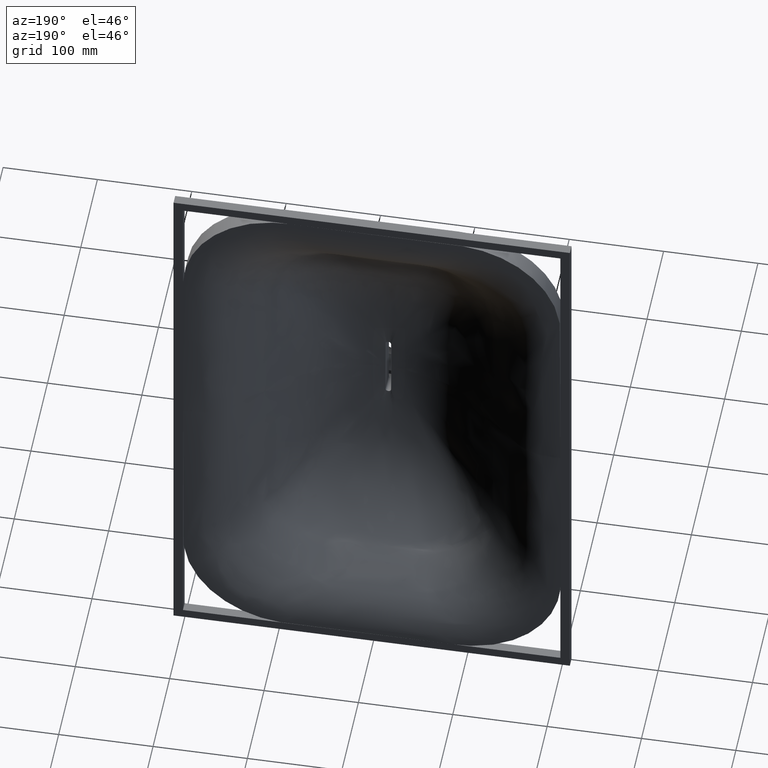
[diagram: clean part render]
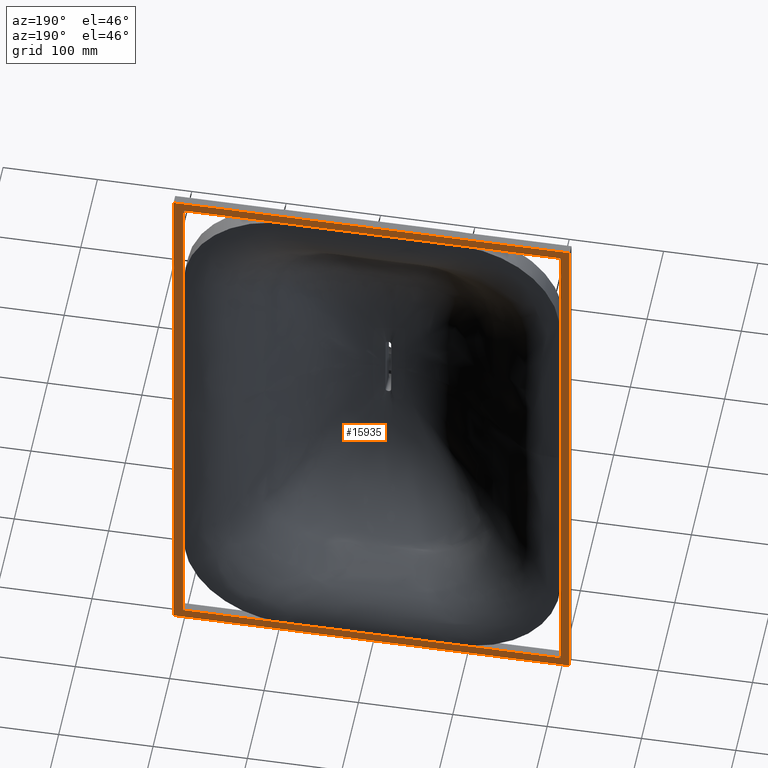
[diagram: same view with one face highlighted and labeled with its STEP entity id]
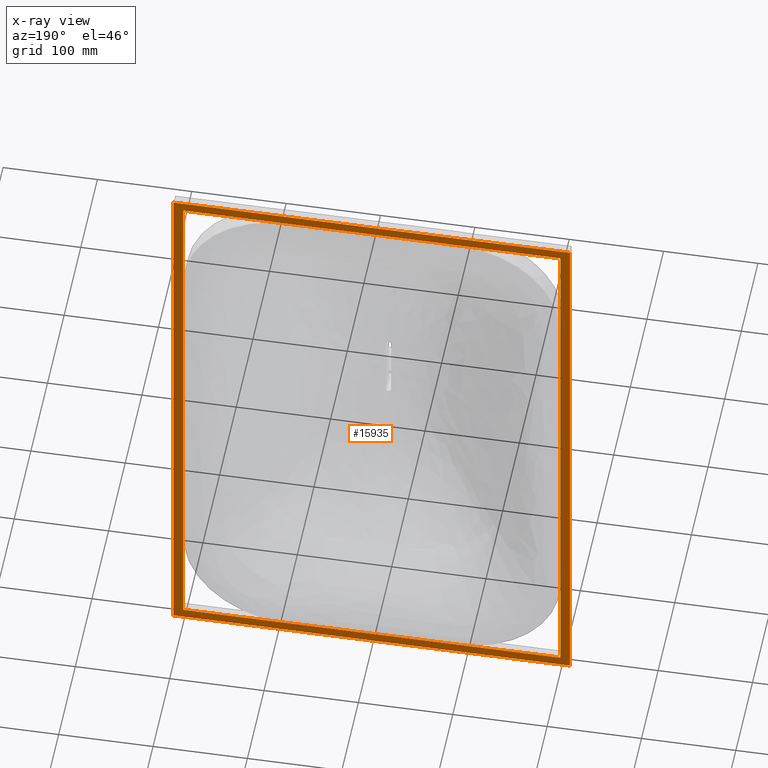
[diagram: x-ray of the same camera — body ghosted, the highlighted face saturated]
A machine part, auxiliary view. The second image highlights one B-rep face of the part: STEP entity #15935.
The next image is the same camera in x-ray: the body ghosted, the highlighted face saturated — about 0% of this face is hidden behind the body in this view.
In plain terms, the highlighted planar face has unit normal (0, -1, 0).
Its self-contained STEP definition (entity closure, byte-faithful):
#238 = VECTOR ( 'NONE', #8235, 1000.000000000000000 ) ;
#628 = VECTOR ( 'NONE', #3960, 1000.000000000000000 ) ;
#1122 = VERTEX_POINT ( 'NONE', #15145 ) ;
#1329 = EDGE_CURVE ( 'NONE', #1860, #11436, #12229, .T. ) ;
#1469 = VECTOR ( 'NONE', #16518, 1000.000000000000000 ) ;
#1860 = VERTEX_POINT ( 'NONE', #15063 ) ;
#2572 = CARTESIAN_POINT ( 'NONE',  ( -210.0000000000000300, 120.0000000000000000, 310.0000000000000000 ) ) ;
#2607 = VERTEX_POINT ( 'NONE', #10592 ) ;
#2845 = VECTOR ( 'NONE', #17099, 1000.000000000000000 ) ;
#3064 = EDGE_CURVE ( 'NONE', #1122, #12258, #16630, .T. ) ;
#3601 = CARTESIAN_POINT ( 'NONE',  ( 210.0000000000000000, 120.0000000000000000, -310.0000000000000000 ) ) ;
#3960 = DIRECTION ( 'NONE',  ( -1.000000000000000000, 0.0000000000000000000, 0.0000000000000000000 ) ) ;
#4462 = ORIENTED_EDGE ( 'NONE', *, *, #15635, .F. ) ;
#4724 = EDGE_CURVE ( 'NONE', #16775, #1860, #13795, .T. ) ;
#5318 = ORIENTED_EDGE ( 'NONE', *, *, #4724, .T. ) ;
#5415 = VECTOR ( 'NONE', #11223, 1000.000000000000000 ) ;
#5638 = ORIENTED_EDGE ( 'NONE', *, *, #1329, .T. ) ;
#5904 = LINE ( 'NONE', #11186, #5415 ) ;
#6856 = CARTESIAN_POINT ( 'NONE',  ( 210.0000000000000000, 120.0000000000000000, -310.0000000000000000 ) ) ;
#6946 = EDGE_CURVE ( 'NONE', #11436, #15710, #8961, .T. ) ;
#7601 = CARTESIAN_POINT ( 'NONE',  ( -200.0000000000000000, 120.0000000000000000, 300.0000000000000000 ) ) ;
#7799 = ORIENTED_EDGE ( 'NONE', *, *, #10842, .T. ) ;
#8235 = DIRECTION ( 'NONE',  ( -4.476705744456276700E-017, 0.0000000000000000000, 1.000000000000000000 ) ) ;
#8278 = CARTESIAN_POINT ( 'NONE',  ( -210.0000000000000000, 120.0000000000000000, -310.0000000000000000 ) ) ;
#8712 = VECTOR ( 'NONE', #16278, 1000.000000000000000 ) ;
#8961 = LINE ( 'NONE', #3601, #628 ) ;
#8990 = ORIENTED_EDGE ( 'NONE', *, *, #17461, .F. ) ;
#9199 = FACE_OUTER_BOUND ( 'NONE', #9490, .T. ) ;
#9290 = AXIS2_PLACEMENT_3D ( 'NONE', #12825, #14016, #14000 ) ;
#9388 = EDGE_CURVE ( 'NONE', #15561, #1122, #12993, .T. ) ;
#9469 = VECTOR ( 'NONE', #11861, 1000.000000000000000 ) ;
#9490 = EDGE_LOOP ( 'NONE', ( #5638, #14648, #7799, #5318 ) ) ;
#10592 = CARTESIAN_POINT ( 'NONE',  ( 200.0000000000000000, 120.0000000000000000, 300.0000000000000000 ) ) ;
#10838 = LINE ( 'NONE', #8278, #238 ) ;
#10842 = EDGE_CURVE ( 'NONE', #15710, #16775, #10838, .T. ) ;
#10852 = CARTESIAN_POINT ( 'NONE',  ( -199.9999999999999700, 120.0000000000000000, -300.0000000000000000 ) ) ;
#11058 = CARTESIAN_POINT ( 'NONE',  ( -210.0000000000000000, 120.0000000000000000, -310.0000000000000000 ) ) ;
#11186 = CARTESIAN_POINT ( 'NONE',  ( 199.9999999999999700, 120.0000000000000000, -300.0000000000000000 ) ) ;
#11223 = DIRECTION ( 'NONE',  ( -4.625929269271485800E-017, -0.0000000000000000000, -1.000000000000000000 ) ) ;
#11363 = DIRECTION ( 'NONE',  ( -0.0000000000000000000, -0.0000000000000000000, -1.000000000000000000 ) ) ;
#11436 = VERTEX_POINT ( 'NONE', #6856 ) ;
#11651 = CARTESIAN_POINT ( 'NONE',  ( 199.9999999999999700, 120.0000000000000000, -300.0000000000000000 ) ) ;
#11861 = DIRECTION ( 'NONE',  ( -1.000000000000000000, 0.0000000000000000000, 0.0000000000000000000 ) ) ;
#12011 = CARTESIAN_POINT ( 'NONE',  ( 200.0000000000000000, 120.0000000000000000, 300.0000000000000000 ) ) ;
#12188 = FACE_BOUND ( 'NONE', #16294, .T. ) ;
#12229 = LINE ( 'NONE', #15389, #14117 ) ;
#12258 = VERTEX_POINT ( 'NONE', #7601 ) ;
#12555 = ORIENTED_EDGE ( 'NONE', *, *, #3064, .F. ) ;
#12623 = LINE ( 'NONE', #12011, #8712 ) ;
#12825 = CARTESIAN_POINT ( 'NONE',  ( 0.0000000000000000000, 120.0000000000000000, 0.0000000000000000000 ) ) ;
#12940 = PLANE ( 'NONE',  #9290 ) ;
#12993 = LINE ( 'NONE', #11651, #9469 ) ;
#13795 = LINE ( 'NONE', #18265, #2845 ) ;
#14000 = DIRECTION ( 'NONE',  ( 0.0000000000000000000, -0.0000000000000000000, -1.000000000000000000 ) ) ;
#14016 = DIRECTION ( 'NONE',  ( 0.0000000000000000000, -1.000000000000000000, 0.0000000000000000000 ) ) ;
#14117 = VECTOR ( 'NONE', #11363, 1000.000000000000000 ) ;
#14639 = CARTESIAN_POINT ( 'NONE',  ( 199.9999999999999700, 120.0000000000000000, -300.0000000000000000 ) ) ;
#14648 = ORIENTED_EDGE ( 'NONE', *, *, #6946, .T. ) ;
#14678 = ORIENTED_EDGE ( 'NONE', *, *, #9388, .F. ) ;
#15063 = CARTESIAN_POINT ( 'NONE',  ( 210.0000000000000000, 120.0000000000000000, 310.0000000000000000 ) ) ;
#15145 = CARTESIAN_POINT ( 'NONE',  ( -199.9999999999999700, 120.0000000000000000, -300.0000000000000000 ) ) ;
#15389 = CARTESIAN_POINT ( 'NONE',  ( 210.0000000000000000, 120.0000000000000000, -310.0000000000000000 ) ) ;
#15561 = VERTEX_POINT ( 'NONE', #14639 ) ;
#15635 = EDGE_CURVE ( 'NONE', #2607, #15561, #5904, .T. ) ;
#15710 = VERTEX_POINT ( 'NONE', #11058 ) ;
#15935 = ADVANCED_FACE ( 'NONE', ( #12188, #9199 ), #12940, .F. ) ;
#16278 = DIRECTION ( 'NONE',  ( 1.000000000000000000, -0.0000000000000000000, -0.0000000000000000000 ) ) ;
#16294 = EDGE_LOOP ( 'NONE', ( #14678, #4462, #8990, #12555 ) ) ;
#16518 = DIRECTION ( 'NONE',  ( -4.625929269271485800E-017, 0.0000000000000000000, 1.000000000000000000 ) ) ;
#16630 = LINE ( 'NONE', #10852, #1469 ) ;
#16775 = VERTEX_POINT ( 'NONE', #2572 ) ;
#17099 = DIRECTION ( 'NONE',  ( 1.000000000000000000, -0.0000000000000000000, -0.0000000000000000000 ) ) ;
#17461 = EDGE_CURVE ( 'NONE', #12258, #2607, #12623, .T. ) ;
#18265 = CARTESIAN_POINT ( 'NONE',  ( 210.0000000000000000, 120.0000000000000000, 310.0000000000000000 ) ) ;